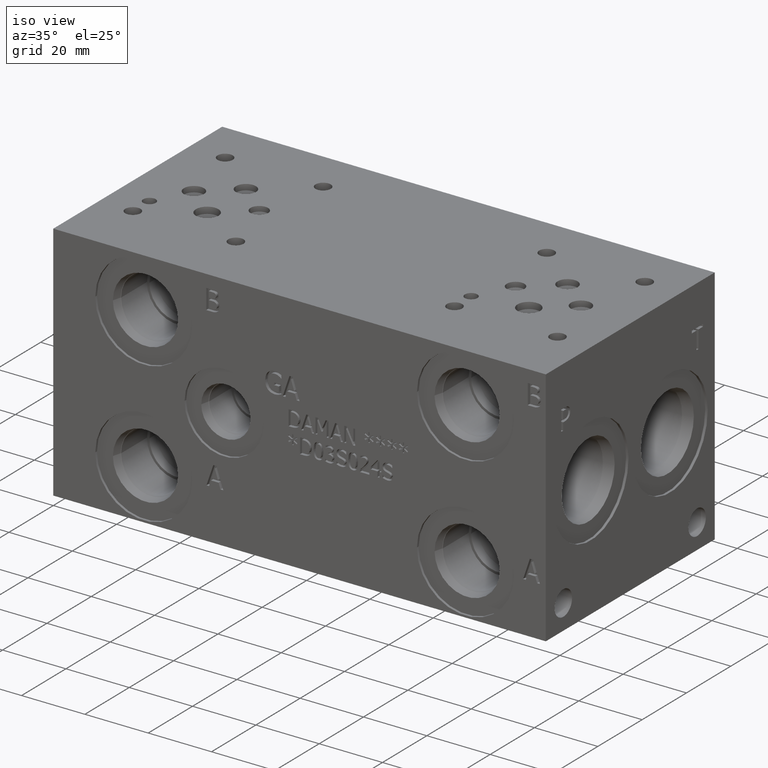
[diagram: clean part render]
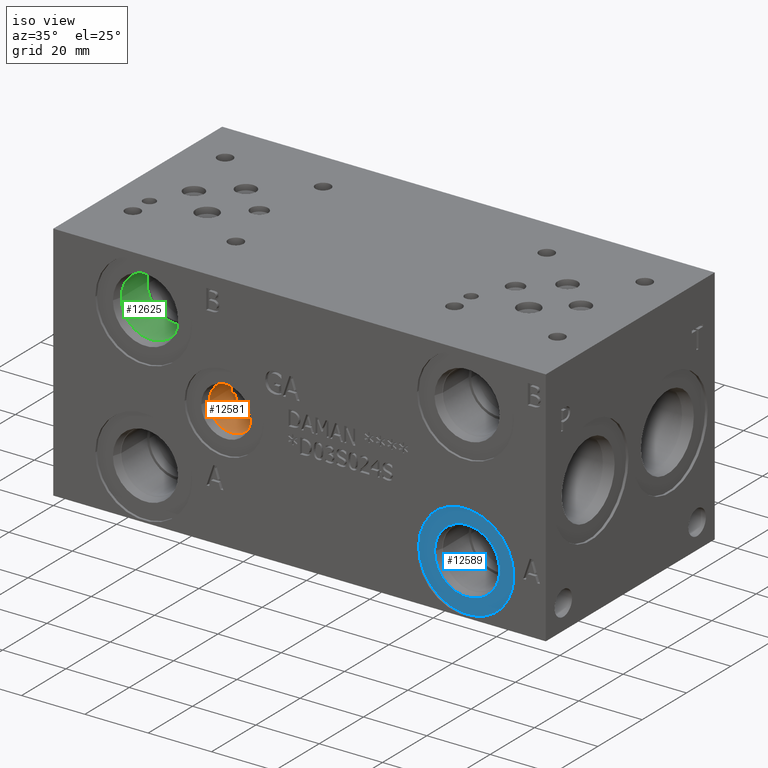
[diagram: same view with three faces highlighted in distinct colors, each labeled with its STEP entity id]
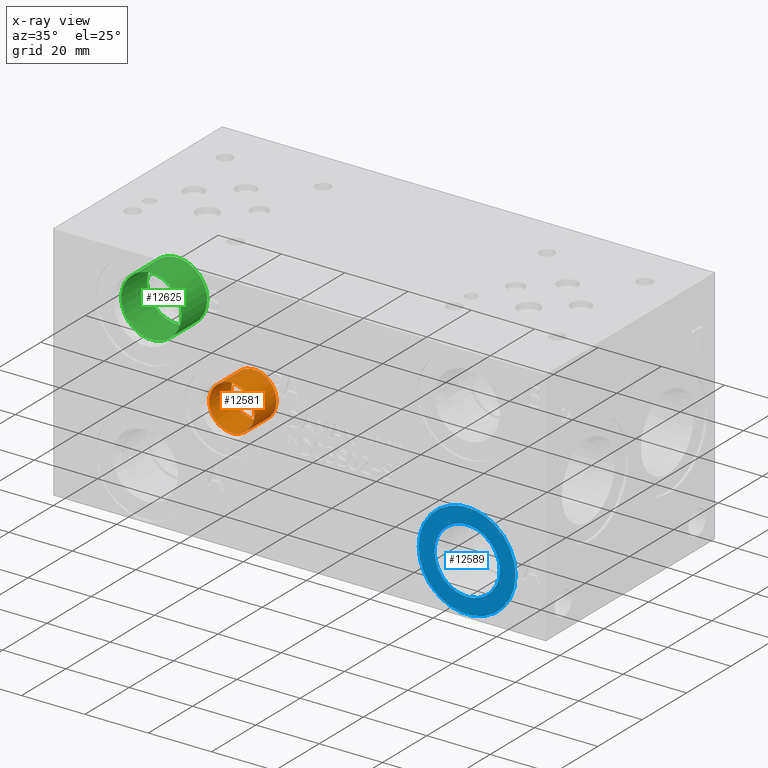
[diagram: x-ray of the same camera — body ghosted, the three highlighted faces saturated]
A machine part, iso view with three faces highlighted in distinct colors.
The next image is the same camera in x-ray (body ghosted, the three faces saturated) — at least one of them is partly hidden behind the body in this view.
Their STEP definitions:

[orange] entity #12581 — the highlighted cylindrical surface (bore or boss wall) has radius 7.1374 mm, axis along (0, -1, 0).
#41=CYLINDRICAL_SURFACE('',#13223,7.1374);
#284=CIRCLE('',#13220,7.1374);
#285=CIRCLE('',#13221,7.1374);
#287=CIRCLE('',#13224,7.1374);
#1576=FACE_OUTER_BOUND('',#2300,.T.);
#2300=EDGE_LOOP('',(#10597,#10598,#10599,#10600,#10601));
#3504=LINE('',#21389,#4644);
#4644=VECTOR('',#15573,7.1374);
#5766=VERTEX_POINT('',#21380);
#5767=VERTEX_POINT('',#21381);
#5769=VERTEX_POINT('',#21387);
#7439=EDGE_CURVE('',#5766,#5767,#284,.T.);
#7440=EDGE_CURVE('',#5767,#5766,#285,.T.);
#7442=EDGE_CURVE('',#5769,#5769,#287,.T.);
#7443=EDGE_CURVE('',#5769,#5767,#3504,.T.);
#10597=ORIENTED_EDGE('',*,*,#7442,.F.);
#10598=ORIENTED_EDGE('',*,*,#7443,.T.);
#10599=ORIENTED_EDGE('',*,*,#7439,.F.);
#10600=ORIENTED_EDGE('',*,*,#7440,.F.);
#10601=ORIENTED_EDGE('',*,*,#7443,.F.);
#12581=ADVANCED_FACE('',(#1576),#41,.F.);
#13220=AXIS2_PLACEMENT_3D('',#21382,#15563,#15564);
#13221=AXIS2_PLACEMENT_3D('',#21383,#15565,#15566);
#13223=AXIS2_PLACEMENT_3D('',#21386,#15569,#15570);
#13224=AXIS2_PLACEMENT_3D('',#21388,#15571,#15572);
#15563=DIRECTION('center_axis',(0.,-1.,0.));
#15564=DIRECTION('ref_axis',(1.,0.,0.));
#15565=DIRECTION('center_axis',(0.,-1.,0.));
#15566=DIRECTION('ref_axis',(1.,0.,0.));
#15569=DIRECTION('center_axis',(0.,-1.,0.));
#15570=DIRECTION('ref_axis',(1.,0.,0.));
#15571=DIRECTION('center_axis',(0.,1.,0.));
#15572=DIRECTION('ref_axis',(1.,0.,0.));
#15573=DIRECTION('',(0.,1.,0.));
#21380=CARTESIAN_POINT('',(61.1124,13.4874,38.1));
#21381=CARTESIAN_POINT('',(46.8376,13.4874,38.1));
#21382=CARTESIAN_POINT('Origin',(53.975,13.4874,38.1));
#21383=CARTESIAN_POINT('Origin',(53.975,13.4874,38.1));
#21386=CARTESIAN_POINT('Origin',(53.975,6.7437,38.1));
#21387=CARTESIAN_POINT('',(46.8376,3.429,38.1));
#21388=CARTESIAN_POINT('Origin',(53.975,3.429,38.1));
#21389=CARTESIAN_POINT('',(46.8376,6.7437,38.1));

[blue] entity #12589 — the highlighted planar face has unit normal (0, 1, 0).
#296=CIRCLE('',#13240,15.3162);
#297=CIRCLE('',#13241,15.3162);
#298=CIRCLE('',#13243,10.2997);
#299=CIRCLE('',#13244,10.2997);
#523=FACE_BOUND('',#2310,.T.);
#1584=FACE_OUTER_BOUND('',#2309,.T.);
#2309=EDGE_LOOP('',(#10640,#10641));
#2310=EDGE_LOOP('',(#10642,#10643));
#5778=VERTEX_POINT('',#21418);
#5779=VERTEX_POINT('',#21420);
#5780=VERTEX_POINT('',#21424);
#5781=VERTEX_POINT('',#21425);
#7458=EDGE_CURVE('',#5778,#5779,#296,.T.);
#7459=EDGE_CURVE('',#5779,#5778,#297,.T.);
#7460=EDGE_CURVE('',#5780,#5781,#298,.T.);
#7461=EDGE_CURVE('',#5781,#5780,#299,.T.);
#10640=ORIENTED_EDGE('',*,*,#7459,.F.);
#10641=ORIENTED_EDGE('',*,*,#7458,.F.);
#10642=ORIENTED_EDGE('',*,*,#7460,.T.);
#10643=ORIENTED_EDGE('',*,*,#7461,.T.);
#11556=PLANE('',#13242);
#12589=ADVANCED_FACE('',(#1584,#523),#11556,.F.);
#13240=AXIS2_PLACEMENT_3D('',#21421,#15610,#15611);
#13241=AXIS2_PLACEMENT_3D('',#21422,#15612,#15613);
#13242=AXIS2_PLACEMENT_3D('',#21423,#15614,#15615);
#13243=AXIS2_PLACEMENT_3D('',#21426,#15616,#15617);
#13244=AXIS2_PLACEMENT_3D('',#21427,#15618,#15619);
#15610=DIRECTION('center_axis',(0.,1.,0.));
#15611=DIRECTION('ref_axis',(1.,0.,0.));
#15612=DIRECTION('center_axis',(0.,1.,0.));
#15613=DIRECTION('ref_axis',(1.,0.,0.));
#15614=DIRECTION('center_axis',(0.,1.,0.));
#15615=DIRECTION('ref_axis',(0.,0.,1.));
#15616=DIRECTION('center_axis',(0.,1.,0.));
#15617=DIRECTION('ref_axis',(1.,0.,0.));
#15618=DIRECTION('center_axis',(0.,1.,0.));
#15619=DIRECTION('ref_axis',(1.,0.,0.));
#21418=CARTESIAN_POINT('',(114.8588,0.7874,15.875));
#21420=CARTESIAN_POINT('',(145.4912,0.7874,15.875));
#21421=CARTESIAN_POINT('Origin',(130.175,0.7874,15.875));
#21422=CARTESIAN_POINT('Origin',(130.175,0.7874,15.875));
#21423=CARTESIAN_POINT('Origin',(140.4747,0.7874,15.875));
#21424=CARTESIAN_POINT('',(140.4747,0.7874,15.875));
#21425=CARTESIAN_POINT('',(119.8753,0.787399999999997,15.875));
#21426=CARTESIAN_POINT('Origin',(130.175,0.7874,15.875));
#21427=CARTESIAN_POINT('Origin',(130.175,0.7874,15.875));

[green] entity #12625 — the highlighted cylindrical surface (bore or boss wall) has radius 9.525 mm, axis along (0, -1, 0).
#61=CYLINDRICAL_SURFACE('',#13335,9.525);
#352=CIRCLE('',#13332,9.525);
#353=CIRCLE('',#13333,9.525);
#355=CIRCLE('',#13336,9.525);
#1620=FACE_OUTER_BOUND('',#2352,.T.);
#2352=EDGE_LOOP('',(#10813,#10814,#10815,#10816,#10817));
#3540=LINE('',#21609,#4680);
#4680=VECTOR('',#15833,9.525);
#5838=VERTEX_POINT('',#21600);
#5839=VERTEX_POINT('',#21601);
#5841=VERTEX_POINT('',#21607);
#7543=EDGE_CURVE('',#5838,#5839,#352,.T.);
#7544=EDGE_CURVE('',#5839,#5838,#353,.T.);
#7546=EDGE_CURVE('',#5841,#5841,#355,.T.);
#7547=EDGE_CURVE('',#5841,#5839,#3540,.T.);
#10813=ORIENTED_EDGE('',*,*,#7546,.F.);
#10814=ORIENTED_EDGE('',*,*,#7547,.T.);
#10815=ORIENTED_EDGE('',*,*,#7543,.F.);
#10816=ORIENTED_EDGE('',*,*,#7544,.F.);
#10817=ORIENTED_EDGE('',*,*,#7547,.F.);
#12625=ADVANCED_FACE('',(#1620),#61,.F.);
#13332=AXIS2_PLACEMENT_3D('',#21602,#15823,#15824);
#13333=AXIS2_PLACEMENT_3D('',#21603,#15825,#15826);
#13335=AXIS2_PLACEMENT_3D('',#21606,#15829,#15830);
#13336=AXIS2_PLACEMENT_3D('',#21608,#15831,#15832);
#15823=DIRECTION('center_axis',(0.,-1.,0.));
#15824=DIRECTION('ref_axis',(1.,0.,0.));
#15825=DIRECTION('center_axis',(0.,-1.,0.));
#15826=DIRECTION('ref_axis',(1.,0.,0.));
#15829=DIRECTION('center_axis',(0.,-1.,0.));
#15830=DIRECTION('ref_axis',(1.,0.,0.));
#15831=DIRECTION('center_axis',(0.,1.,0.));
#15832=DIRECTION('ref_axis',(1.,0.,0.));
#15833=DIRECTION('',(0.,1.,0.));
#21600=CARTESIAN_POINT('',(38.1,15.0622,60.325));
#21601=CARTESIAN_POINT('',(19.05,15.0622,60.325));
#21602=CARTESIAN_POINT('Origin',(28.575,15.0622,60.325));
#21603=CARTESIAN_POINT('Origin',(28.575,15.0622,60.325));
#21606=CARTESIAN_POINT('Origin',(28.575,7.5311,60.325));
#21607=CARTESIAN_POINT('',(19.05,3.4036,60.325));
#21608=CARTESIAN_POINT('Origin',(28.575,3.4036,60.325));
#21609=CARTESIAN_POINT('',(19.05,7.5311,60.325));